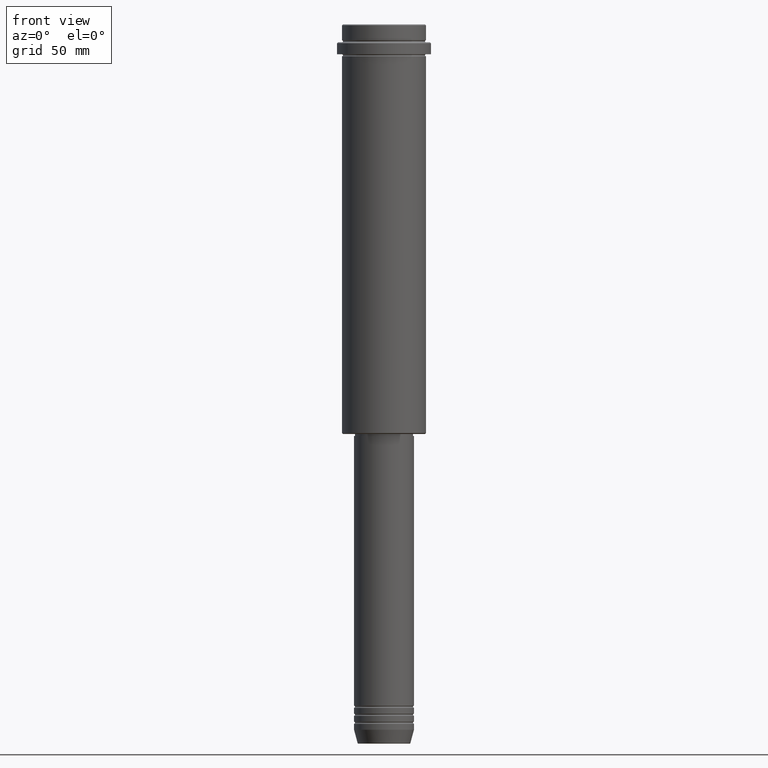
[diagram: clean part render]
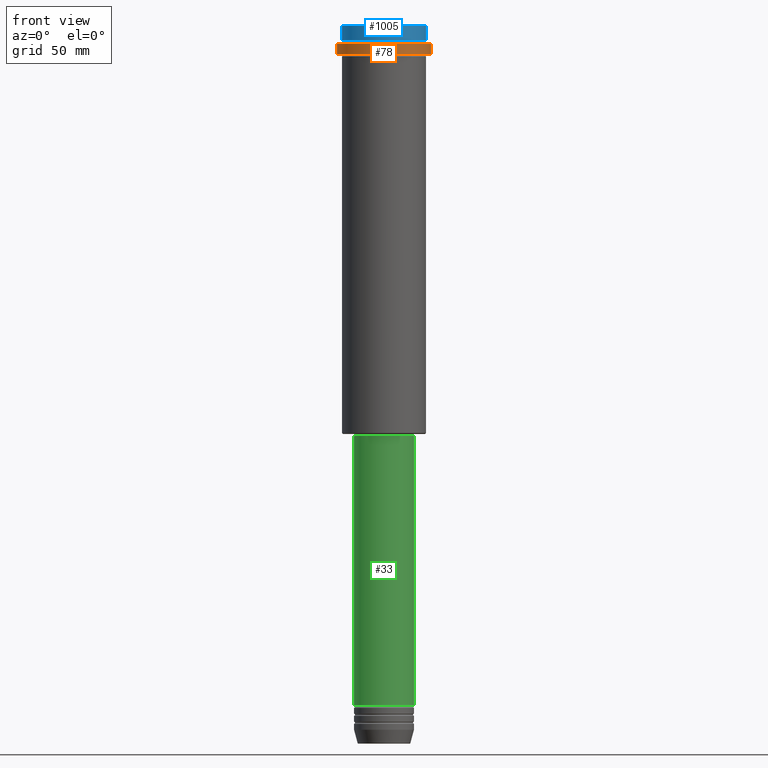
[diagram: same view with three faces highlighted in distinct colors, each labeled with its STEP entity id]
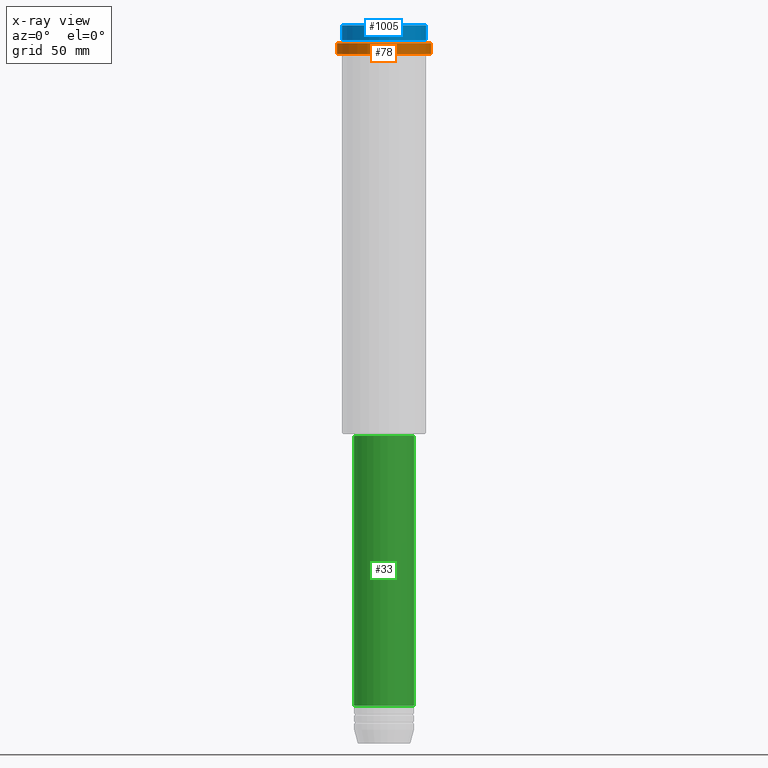
[diagram: x-ray of the same camera — body ghosted, the three highlighted faces saturated]
A machine part, front view with three faces highlighted in distinct colors.
The next image is the same camera in x-ray (body ghosted, the three faces saturated) — at least one of them is partly hidden behind the body in this view.
Their STEP definitions:

[orange] entity #78 — the highlighted cylindrical surface (partial cylindrical patch) has radius 23.5 mm, axis along (-0, -0, 1).
#31 = EDGE_LOOP ( 'NONE', ( #329, #1136, #790, #1082 ) ) ;
#67 = CARTESIAN_POINT ( 'NONE',  ( 23.50000000000000000, 0.000000000000000000, -9.500000000000001776 ) ) ;
#78 = ADVANCED_FACE ( 'NONE', ( #1358 ), #486, .T. ) ;
#111 = EDGE_CURVE ( 'NONE', #1293, #144, #963, .T. ) ;
#144 = VERTEX_POINT ( 'NONE', #712 ) ;
#187 = CARTESIAN_POINT ( 'NONE',  ( -23.50000000000000711, 2.877919977996281109E-15, -15.00000000000000178 ) ) ;
#204 = EDGE_CURVE ( 'NONE', #1016, #144, #988, .T. ) ;
#307 = DIRECTION ( 'NONE',  ( -0.000000000000000000, -0.000000000000000000, 1.000000000000000000 ) ) ;
#329 = ORIENTED_EDGE ( 'NONE', *, *, #204, .F. ) ;
#349 = AXIS2_PLACEMENT_3D ( 'NONE', #1063, #493, #705 ) ;
#398 = DIRECTION ( 'NONE',  ( 1.000000000000000000, 0.000000000000000000, 0.000000000000000000 ) ) ;
#414 = AXIS2_PLACEMENT_3D ( 'NONE', #722, #1377, #398 ) ;
#423 = CARTESIAN_POINT ( 'NONE',  ( -23.50000000000000000, 2.877919977996280320E-15, 0.000000000000000000 ) ) ;
#450 = EDGE_CURVE ( 'NONE', #1016, #1119, #1243, .T. ) ;
#486 = CYLINDRICAL_SURFACE ( 'NONE', #779, 23.50000000000000000 ) ;
#493 = DIRECTION ( 'NONE',  ( 0.000000000000000000, 0.000000000000000000, -1.000000000000000000 ) ) ;
#705 = DIRECTION ( 'NONE',  ( 1.000000000000000000, 0.000000000000000000, 0.000000000000000000 ) ) ;
#712 = CARTESIAN_POINT ( 'NONE',  ( -23.50000000000000000, 2.877919977996280320E-15, -9.500000000000001776 ) ) ;
#722 = CARTESIAN_POINT ( 'NONE',  ( 0.000000000000000000, 0.000000000000000000, -15.00000000000000178 ) ) ;
#744 = DIRECTION ( 'NONE',  ( -0.000000000000000000, -0.000000000000000000, 1.000000000000000000 ) ) ;
#769 = CARTESIAN_POINT ( 'NONE',  ( 23.50000000000000000, 0.000000000000000000, 0.000000000000000000 ) ) ;
#770 = EDGE_CURVE ( 'NONE', #1119, #1293, #860, .T. ) ;
#774 = CARTESIAN_POINT ( 'NONE',  ( 23.50000000000000355, 0.000000000000000000, -15.00000000000000178 ) ) ;
#779 = AXIS2_PLACEMENT_3D ( 'NONE', #832, #814, #930 ) ;
#790 = ORIENTED_EDGE ( 'NONE', *, *, #770, .T. ) ;
#814 = DIRECTION ( 'NONE',  ( -0.000000000000000000, -0.000000000000000000, 1.000000000000000000 ) ) ;
#832 = CARTESIAN_POINT ( 'NONE',  ( 0.000000000000000000, 0.000000000000000000, 0.000000000000000000 ) ) ;
#860 = LINE ( 'NONE', #769, #1168 ) ;
#930 = DIRECTION ( 'NONE',  ( 1.000000000000000000, 0.000000000000000000, 0.000000000000000000 ) ) ;
#963 = CIRCLE ( 'NONE', #349, 23.50000000000000000 ) ;
#988 = LINE ( 'NONE', #423, #1261 ) ;
#1016 = VERTEX_POINT ( 'NONE', #187 ) ;
#1063 = CARTESIAN_POINT ( 'NONE',  ( 0.000000000000000000, 0.000000000000000000, -9.500000000000001776 ) ) ;
#1082 = ORIENTED_EDGE ( 'NONE', *, *, #111, .T. ) ;
#1119 = VERTEX_POINT ( 'NONE', #774 ) ;
#1136 = ORIENTED_EDGE ( 'NONE', *, *, #450, .T. ) ;
#1168 = VECTOR ( 'NONE', #744, 1000.000000000000000 ) ;
#1243 = CIRCLE ( 'NONE', #414, 23.50000000000000355 ) ;
#1261 = VECTOR ( 'NONE', #307, 1000.000000000000000 ) ;
#1293 = VERTEX_POINT ( 'NONE', #67 ) ;
#1358 = FACE_OUTER_BOUND ( 'NONE', #31, .T. ) ;
#1377 = DIRECTION ( 'NONE',  ( -0.000000000000000000, -0.000000000000000000, 1.000000000000000000 ) ) ;

[blue] entity #1005 — the highlighted cylindrical surface (partial cylindrical patch) has radius 21 mm, axis along (-0, -0, 1).
#20 = DIRECTION ( 'NONE',  ( 1.000000000000000000, 0.000000000000000000, 0.000000000000000000 ) ) ;
#73 = DIRECTION ( 'NONE',  ( 1.000000000000000000, 0.000000000000000000, 0.000000000000000000 ) ) ;
#95 = AXIS2_PLACEMENT_3D ( 'NONE', #1264, #1257, #73 ) ;
#108 = CARTESIAN_POINT ( 'NONE',  ( -20.99999999999999645, 2.571758278209441267E-15, -0.4999999999999241163 ) ) ;
#128 = CARTESIAN_POINT ( 'NONE',  ( 0.000000000000000000, 0.000000000000000000, -0.4999999999999241163 ) ) ;
#129 = CARTESIAN_POINT ( 'NONE',  ( 0.000000000000000000, 0.000000000000000000, -7.999999999999998224 ) ) ;
#138 = VECTOR ( 'NONE', #678, 1000.000000000000000 ) ;
#152 = EDGE_LOOP ( 'NONE', ( #358, #994, #1375, #483 ) ) ;
#212 = DIRECTION ( 'NONE',  ( 0.000000000000000000, 0.000000000000000000, -1.000000000000000000 ) ) ;
#245 = CARTESIAN_POINT ( 'NONE',  ( 20.99999999999999645, 0.000000000000000000, 0.000000000000000000 ) ) ;
#338 = EDGE_CURVE ( 'NONE', #893, #1139, #464, .T. ) ;
#339 = LINE ( 'NONE', #1344, #1200 ) ;
#358 = ORIENTED_EDGE ( 'NONE', *, *, #361, .F. ) ;
#361 = EDGE_CURVE ( 'NONE', #893, #1155, #339, .T. ) ;
#427 = CARTESIAN_POINT ( 'NONE',  ( -20.99999999999999645, 2.571758278209441267E-15, -7.999999999999998224 ) ) ;
#458 = CIRCLE ( 'NONE', #888, 20.99999999999999645 ) ;
#464 = CIRCLE ( 'NONE', #598, 20.99999999999999645 ) ;
#483 = ORIENTED_EDGE ( 'NONE', *, *, #509, .T. ) ;
#509 = EDGE_CURVE ( 'NONE', #555, #1155, #458, .T. ) ;
#555 = VERTEX_POINT ( 'NONE', #1085 ) ;
#598 = AXIS2_PLACEMENT_3D ( 'NONE', #129, #1363, #20 ) ;
#640 = DIRECTION ( 'NONE',  ( 1.000000000000000000, 0.000000000000000000, 0.000000000000000000 ) ) ;
#647 = EDGE_CURVE ( 'NONE', #1139, #555, #918, .T. ) ;
#678 = DIRECTION ( 'NONE',  ( -0.000000000000000000, -0.000000000000000000, 1.000000000000000000 ) ) ;
#773 = DIRECTION ( 'NONE',  ( -0.000000000000000000, -0.000000000000000000, 1.000000000000000000 ) ) ;
#826 = CYLINDRICAL_SURFACE ( 'NONE', #95, 20.99999999999999645 ) ;
#854 = CARTESIAN_POINT ( 'NONE',  ( 20.99999999999999645, 0.000000000000000000, -7.999999999999998224 ) ) ;
#888 = AXIS2_PLACEMENT_3D ( 'NONE', #128, #212, #640 ) ;
#893 = VERTEX_POINT ( 'NONE', #427 ) ;
#918 = LINE ( 'NONE', #245, #138 ) ;
#950 = FACE_OUTER_BOUND ( 'NONE', #152, .T. ) ;
#994 = ORIENTED_EDGE ( 'NONE', *, *, #338, .T. ) ;
#1005 = ADVANCED_FACE ( 'NONE', ( #950 ), #826, .T. ) ;
#1085 = CARTESIAN_POINT ( 'NONE',  ( 20.99999999999999645, 0.000000000000000000, -0.4999999999999241163 ) ) ;
#1139 = VERTEX_POINT ( 'NONE', #854 ) ;
#1155 = VERTEX_POINT ( 'NONE', #108 ) ;
#1200 = VECTOR ( 'NONE', #773, 1000.000000000000000 ) ;
#1257 = DIRECTION ( 'NONE',  ( -0.000000000000000000, -0.000000000000000000, 1.000000000000000000 ) ) ;
#1264 = CARTESIAN_POINT ( 'NONE',  ( 0.000000000000000000, 0.000000000000000000, 0.000000000000000000 ) ) ;
#1344 = CARTESIAN_POINT ( 'NONE',  ( -20.99999999999999645, 2.571758278209441267E-15, 0.000000000000000000 ) ) ;
#1363 = DIRECTION ( 'NONE',  ( -0.000000000000000000, -0.000000000000000000, 1.000000000000000000 ) ) ;
#1375 = ORIENTED_EDGE ( 'NONE', *, *, #647, .T. ) ;

[green] entity #33 — the highlighted cylindrical surface (edge-blend (fillet) strip) has radius 15 mm, axis along (-0, -0, 1).
#8 = CIRCLE ( 'NONE', #577, 15.00000000000000000 ) ;
#21 = FACE_OUTER_BOUND ( 'NONE', #438, .T. ) ;
#33 = ADVANCED_FACE ( 'NONE', ( #21 ), #36, .T. ) ;
#36 = CYLINDRICAL_SURFACE ( 'NONE', #54, 15.00000000000000000 ) ;
#54 = AXIS2_PLACEMENT_3D ( 'NONE', #472, #1341, #916 ) ;
#133 = CARTESIAN_POINT ( 'NONE',  ( -15.00000000000000000, 1.836970198721029589E-15, 0.000000000000000000 ) ) ;
#150 = DIRECTION ( 'NONE',  ( 1.000000000000000000, 0.000000000000000000, 0.000000000000000000 ) ) ;
#155 = CARTESIAN_POINT ( 'NONE',  ( 0.000000000000000000, 0.000000000000000000, -340.9999999999998863 ) ) ;
#230 = LINE ( 'NONE', #133, #1149 ) ;
#235 = CARTESIAN_POINT ( 'NONE',  ( -15.00000000000000000, 1.836970198721029589E-15, -340.9999999999998863 ) ) ;
#254 = CARTESIAN_POINT ( 'NONE',  ( 15.00000000000000000, 0.000000000000000000, 0.000000000000000000 ) ) ;
#260 = ORIENTED_EDGE ( 'NONE', *, *, #1194, .F. ) ;
#289 = VERTEX_POINT ( 'NONE', #602 ) ;
#369 = DIRECTION ( 'NONE',  ( -0.000000000000000000, -0.000000000000000000, 1.000000000000000000 ) ) ;
#396 = VERTEX_POINT ( 'NONE', #1249 ) ;
#438 = EDGE_LOOP ( 'NONE', ( #637, #1067, #1159, #260 ) ) ;
#469 = DIRECTION ( 'NONE',  ( -0.000000000000000000, -0.000000000000000000, 1.000000000000000000 ) ) ;
#472 = CARTESIAN_POINT ( 'NONE',  ( 0.000000000000000000, 0.000000000000000000, 0.000000000000000000 ) ) ;
#552 = AXIS2_PLACEMENT_3D ( 'NONE', #155, #469, #150 ) ;
#576 = VERTEX_POINT ( 'NONE', #235 ) ;
#577 = AXIS2_PLACEMENT_3D ( 'NONE', #1414, #1202, #760 ) ;
#602 = CARTESIAN_POINT ( 'NONE',  ( 15.00000000000000000, 0.000000000000000000, -340.9999999999998863 ) ) ;
#637 = ORIENTED_EDGE ( 'NONE', *, *, #1266, .F. ) ;
#657 = EDGE_CURVE ( 'NONE', #576, #289, #961, .T. ) ;
#698 = LINE ( 'NONE', #254, #843 ) ;
#760 = DIRECTION ( 'NONE',  ( 1.000000000000000000, 0.000000000000000000, 0.000000000000000000 ) ) ;
#808 = CARTESIAN_POINT ( 'NONE',  ( -15.00000000000000000, 1.836970198721029589E-15, -205.9999999999999716 ) ) ;
#843 = VECTOR ( 'NONE', #1144, 1000.000000000000000 ) ;
#916 = DIRECTION ( 'NONE',  ( 1.000000000000000000, 0.000000000000000000, 0.000000000000000000 ) ) ;
#945 = EDGE_CURVE ( 'NONE', #289, #396, #698, .T. ) ;
#961 = CIRCLE ( 'NONE', #552, 15.00000000000000000 ) ;
#1067 = ORIENTED_EDGE ( 'NONE', *, *, #657, .T. ) ;
#1144 = DIRECTION ( 'NONE',  ( -0.000000000000000000, -0.000000000000000000, 1.000000000000000000 ) ) ;
#1149 = VECTOR ( 'NONE', #369, 1000.000000000000000 ) ;
#1159 = ORIENTED_EDGE ( 'NONE', *, *, #945, .T. ) ;
#1194 = EDGE_CURVE ( 'NONE', #1333, #396, #8, .T. ) ;
#1202 = DIRECTION ( 'NONE',  ( -0.000000000000000000, -0.000000000000000000, 1.000000000000000000 ) ) ;
#1249 = CARTESIAN_POINT ( 'NONE',  ( 15.00000000000000000, 0.000000000000000000, -205.9999999999999716 ) ) ;
#1266 = EDGE_CURVE ( 'NONE', #576, #1333, #230, .T. ) ;
#1333 = VERTEX_POINT ( 'NONE', #808 ) ;
#1341 = DIRECTION ( 'NONE',  ( -0.000000000000000000, -0.000000000000000000, 1.000000000000000000 ) ) ;
#1414 = CARTESIAN_POINT ( 'NONE',  ( 0.000000000000000000, 0.000000000000000000, -205.9999999999999716 ) ) ;